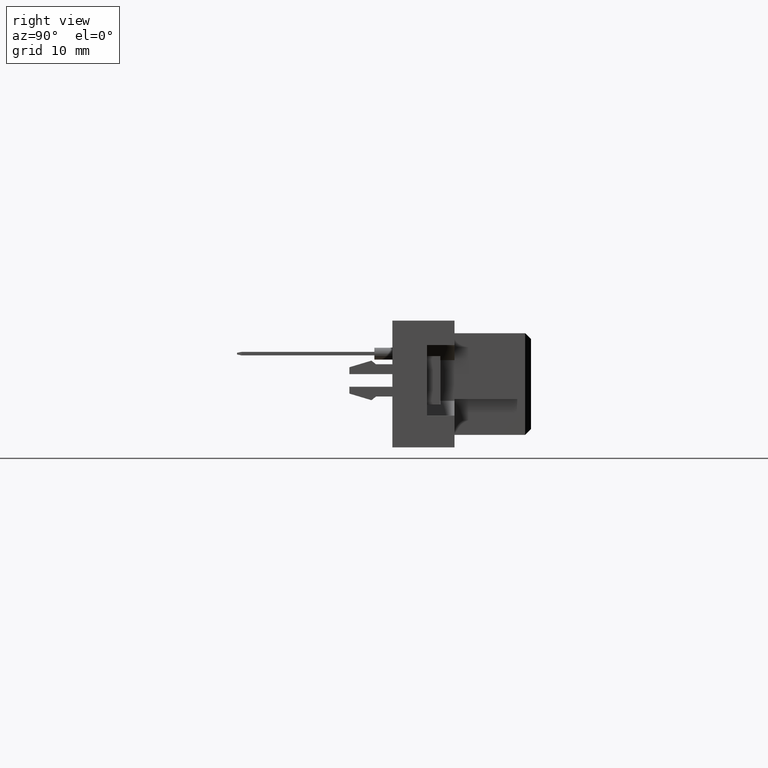
[diagram: clean part render]
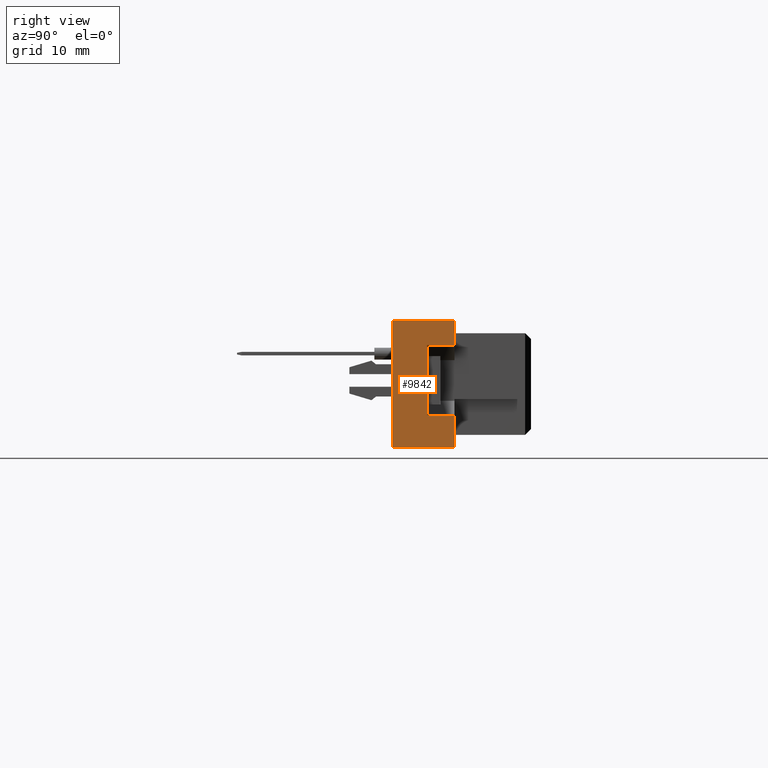
[diagram: same view with one face highlighted and labeled with its STEP entity id]
A machine part, right view. The second image highlights one B-rep face of the part: STEP entity #9842.
In plain terms, the highlighted planar face has unit normal (1, 0, 0).
Its self-contained STEP definition (entity closure, byte-faithful):
#194 = VECTOR ( 'NONE', #4040, 1000.000000000000000 ) ;
#612 = LINE ( 'NONE', #3558, #15863 ) ;
#672 = LINE ( 'NONE', #20044, #20889 ) ;
#1035 = VERTEX_POINT ( 'NONE', #15570 ) ;
#1384 = EDGE_CURVE ( 'NONE', #4993, #11364, #10000, .T. ) ;
#1463 = ORIENTED_EDGE ( 'NONE', *, *, #14669, .T. ) ;
#2151 = EDGE_CURVE ( 'NONE', #8374, #4993, #612, .T. ) ;
#2805 = DIRECTION ( 'NONE',  ( 0.0000000000000000000, 0.0000000000000000000, -1.000000000000000000 ) ) ;
#2846 = LINE ( 'NONE', #8905, #194 ) ;
#2868 = AXIS2_PLACEMENT_3D ( 'NONE', #8373, #17690, #5083 ) ;
#2917 = LINE ( 'NONE', #10653, #19352 ) ;
#3224 = DIRECTION ( 'NONE',  ( -0.0000000000000000000, 1.000000000000000000, 6.123031769111886291E-17 ) ) ;
#3558 = CARTESIAN_POINT ( 'NONE',  ( 27.50000000000000355, -8.700000000000001066, -2.649999999999994582 ) ) ;
#4040 = DIRECTION ( 'NONE',  ( 0.0000000000000000000, 1.000000000000000000, 0.0000000000000000000 ) ) ;
#4362 = EDGE_CURVE ( 'NONE', #14256, #15867, #672, .T. ) ;
#4993 = VERTEX_POINT ( 'NONE', #16785 ) ;
#5083 = DIRECTION ( 'NONE',  ( 0.0000000000000000000, 0.0000000000000000000, -1.000000000000000000 ) ) ;
#5267 = ORIENTED_EDGE ( 'NONE', *, *, #8698, .F. ) ;
#5338 = EDGE_CURVE ( 'NONE', #1035, #16024, #2846, .T. ) ;
#5559 = EDGE_CURVE ( 'NONE', #11364, #16024, #14372, .T. ) ;
#6020 = CARTESIAN_POINT ( 'NONE',  ( 27.50000000000000355, -6.400000000000001243, -2.649999999999994582 ) ) ;
#6349 = ORIENTED_EDGE ( 'NONE', *, *, #5559, .F. ) ;
#6809 = VECTOR ( 'NONE', #20893, 1000.000000000000000 ) ;
#7057 = DIRECTION ( 'NONE',  ( -0.0000000000000000000, -0.0000000000000000000, -1.000000000000000000 ) ) ;
#7607 = VECTOR ( 'NONE', #12779, 1000.000000000000000 ) ;
#8373 = CARTESIAN_POINT ( 'NONE',  ( 27.49999999999999645, -11.59999999999999964, 5.299999999999999822 ) ) ;
#8374 = VERTEX_POINT ( 'NONE', #20815 ) ;
#8698 = EDGE_CURVE ( 'NONE', #13874, #14256, #14533, .T. ) ;
#8905 = CARTESIAN_POINT ( 'NONE',  ( 27.49999999999999645, -11.59999999999999964, -5.299999999999999822 ) ) ;
#8963 = ORIENTED_EDGE ( 'NONE', *, *, #4362, .F. ) ;
#9813 = CARTESIAN_POINT ( 'NONE',  ( 27.49999999999999645, -6.400000000000001243, 5.299999999999999822 ) ) ;
#9842 = ADVANCED_FACE ( 'NONE', ( #11224 ), #19610, .T. ) ;
#9868 = CARTESIAN_POINT ( 'NONE',  ( 27.49999999999999645, -11.59999999999999964, 5.299999999999999822 ) ) ;
#10000 = LINE ( 'NONE', #16475, #13122 ) ;
#10113 = CARTESIAN_POINT ( 'NONE',  ( 27.49999999999999645, -6.400000000000001243, -5.299999999999999822 ) ) ;
#10653 = CARTESIAN_POINT ( 'NONE',  ( 27.49999999999999645, -11.59999999999999964, 5.299999999999999822 ) ) ;
#11224 = FACE_OUTER_BOUND ( 'NONE', #12942, .T. ) ;
#11364 = VERTEX_POINT ( 'NONE', #6020 ) ;
#12320 = VECTOR ( 'NONE', #17714, 1000.000000000000000 ) ;
#12779 = DIRECTION ( 'NONE',  ( 0.0000000000000000000, 0.0000000000000000000, -1.000000000000000000 ) ) ;
#12942 = EDGE_LOOP ( 'NONE', ( #1463, #8963, #5267, #13636, #18440, #6349, #17105, #18825 ) ) ;
#13122 = VECTOR ( 'NONE', #3224, 1000.000000000000000 ) ;
#13254 = CARTESIAN_POINT ( 'NONE',  ( 27.50000000000000355, -8.700000000000001066, 3.250000000000001776 ) ) ;
#13636 = ORIENTED_EDGE ( 'NONE', *, *, #17317, .T. ) ;
#13874 = VERTEX_POINT ( 'NONE', #15887 ) ;
#14256 = VERTEX_POINT ( 'NONE', #9813 ) ;
#14372 = LINE ( 'NONE', #19350, #7607 ) ;
#14533 = LINE ( 'NONE', #9868, #12320 ) ;
#14669 = EDGE_CURVE ( 'NONE', #8374, #15867, #17825, .T. ) ;
#15570 = CARTESIAN_POINT ( 'NONE',  ( 27.49999999999999645, -11.59999999999999964, -5.299999999999999822 ) ) ;
#15863 = VECTOR ( 'NONE', #7057, 1000.000000000000000 ) ;
#15867 = VERTEX_POINT ( 'NONE', #19335 ) ;
#15887 = CARTESIAN_POINT ( 'NONE',  ( 27.49999999999999645, -11.59999999999999964, 5.299999999999999822 ) ) ;
#16024 = VERTEX_POINT ( 'NONE', #10113 ) ;
#16475 = CARTESIAN_POINT ( 'NONE',  ( 27.50000000000000355, -8.700000000000001066, -2.649999999999994582 ) ) ;
#16785 = CARTESIAN_POINT ( 'NONE',  ( 27.50000000000000355, -8.700000000000001066, -2.649999999999994582 ) ) ;
#17105 = ORIENTED_EDGE ( 'NONE', *, *, #1384, .F. ) ;
#17317 = EDGE_CURVE ( 'NONE', #13874, #1035, #2917, .T. ) ;
#17690 = DIRECTION ( 'NONE',  ( 1.000000000000000000, -0.0000000000000000000, 0.0000000000000000000 ) ) ;
#17714 = DIRECTION ( 'NONE',  ( 0.0000000000000000000, 1.000000000000000000, 0.0000000000000000000 ) ) ;
#17825 = LINE ( 'NONE', #13254, #6809 ) ;
#18440 = ORIENTED_EDGE ( 'NONE', *, *, #5338, .T. ) ;
#18825 = ORIENTED_EDGE ( 'NONE', *, *, #2151, .F. ) ;
#19335 = CARTESIAN_POINT ( 'NONE',  ( 27.50000000000000355, -6.400000000000001243, 3.250000000000001776 ) ) ;
#19350 = CARTESIAN_POINT ( 'NONE',  ( 27.49999999999999645, -6.400000000000001243, 5.299999999999999822 ) ) ;
#19352 = VECTOR ( 'NONE', #2805, 1000.000000000000000 ) ;
#19610 = PLANE ( 'NONE',  #2868 ) ;
#20044 = CARTESIAN_POINT ( 'NONE',  ( 27.49999999999999645, -6.400000000000001243, 5.299999999999999822 ) ) ;
#20150 = DIRECTION ( 'NONE',  ( 0.0000000000000000000, 0.0000000000000000000, -1.000000000000000000 ) ) ;
#20815 = CARTESIAN_POINT ( 'NONE',  ( 27.50000000000000355, -8.700000000000001066, 3.250000000000001776 ) ) ;
#20889 = VECTOR ( 'NONE', #20150, 1000.000000000000000 ) ;
#20893 = DIRECTION ( 'NONE',  ( -0.0000000000000000000, 1.000000000000000000, 6.123031769111886291E-17 ) ) ;